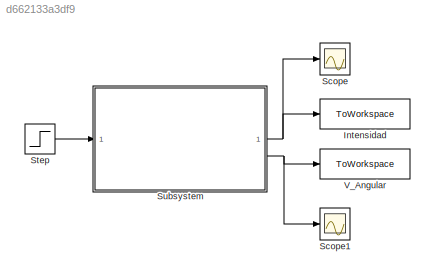
MODEL slx_d662133a3df9
KIND model
CONFIG AbsTol = auto
CONFIG EnableMultiTasking = off
CONFIG FixedStep = auto
CONFIG MaxStep = auto
CONFIG MinStep = auto
CONFIG RelTol = 1e-3
CONFIG SampleTimeConstraint = Unconstrained
CONFIG SolverName = VariableStepAuto
CONFIG StartTime = 0.0
CONFIG StopTime = 1
BLOCK [ToWorkspace] Intensidad
  MaxDataPoints = inf
  SampleTime = -1
  VariableName = intensidad
BLOCK [Scope] Scope
  Floating = off
  NumInputPorts = 1
  ScopeSpecificationString = Simulink.scopes.TimeScopeBlockCfg('CurrentConfiguration', extmgr.ConfigurationSet(extmgr.Configuration('Core','General UI',true),extmgr.Configuration('Core','Source UI',true),extmgr.Configuration('Sources','WiredSimulink',true),extmgr.Configuration('Visuals','Time Domain',true,'SerializedDisplays',{struct('MinYLimReal','-0.95522','MaxYLimReal','8.59701','YLabelReal','','MinYLimMag','0.00000','MaxY...<+1462ch>
BLOCK [Scope] Scope1
  Floating = off
  NumInputPorts = 1
  ScopeSpecificationString = Simulink.scopes.TimeScopeBlockCfg('CurrentConfiguration', extmgr.ConfigurationSet(extmgr.Configuration('Core','General UI',true),extmgr.Configuration('Core','Source UI',true),extmgr.Configuration('Sources','WiredSimulink',true,'DataLoggingVariableName','ScopeData1'),extmgr.Configuration('Visuals','Time Domain',true,'SerializedDisplays',{struct('MinYLimReal','-16.17564','MaxYLimReal','145.58079','Y...<+1511ch>
BLOCK [Step] Step
  After = 10.5
  SampleTime = 0
  Time = 0.5
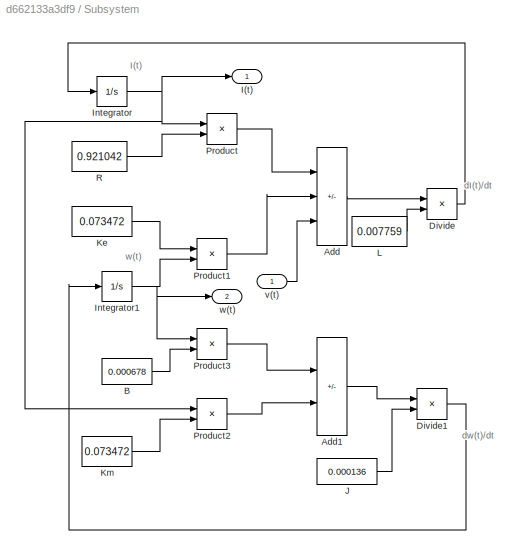
BLOCK [SubSystem] Subsystem
BLOCK [Sum] Subsystem/Add
  IconShape = rectangular
  Inputs = --+
BLOCK [Sum] Subsystem/Add1
  IconShape = rectangular
  Inputs = -+
BLOCK [Constant] Subsystem/B
  Value = 0.000678
BLOCK [Product] Subsystem/Divide
  Inputs = */
BLOCK [Product] Subsystem/Divide1
  Inputs = */
BLOCK [Outport] Subsystem/I(t)
BLOCK [Integrator] Subsystem/Integrator
BLOCK [Integrator] Subsystem/Integrator1
BLOCK [Constant] Subsystem/J
  Value = 0.000136
BLOCK [Constant] Subsystem/Ke
  Value = 0.073472
BLOCK [Constant] Subsystem/Km
  Value = 0.073472
BLOCK [Constant] Subsystem/L
  Value = 0.007759
BLOCK [Product] Subsystem/Product
BLOCK [Product] Subsystem/Product1
BLOCK [Product] Subsystem/Product2
BLOCK [Product] Subsystem/Product3
BLOCK [Constant] Subsystem/R
  Value = 0.921042
BLOCK [Inport] Subsystem/v(t)
BLOCK [Outport] Subsystem/w(t)
  Port = 2
BLOCK [ToWorkspace] V_Angular
  FixptAsFi = on
  MaxDataPoints = inf
  SampleTime = -1
  VariableName = v_angular
ANNOTATION Subsystem: I(t)
ANNOTATION Subsystem: dI(t)/dt
ANNOTATION Subsystem: dw(t)/dt
ANNOTATION Subsystem: w(t)
LINE Step:1 -> Subsystem:1
LINE Subsystem/Add1:1 -> Subsystem/Divide1:1
LINE Subsystem/Add:1 -> Subsystem/Divide:1
LINE Subsystem/B:1 -> Subsystem/Product3:2
LINE Subsystem/Divide1:1 -> Subsystem/Integrator1:1
LINE Subsystem/Divide:1 -> Subsystem/Integrator:1
NET Subsystem/Integrator1:1 -> Subsystem/Product1:2, Subsystem/Product3:1, Subsystem/w(t):1
NET Subsystem/Integrator:1 -> Subsystem/I(t):1, Subsystem/Product2:1, Subsystem/Product:1
LINE Subsystem/J:1 -> Subsystem/Divide1:2
LINE Subsystem/Ke:1 -> Subsystem/Product1:1
LINE Subsystem/Km:1 -> Subsystem/Product2:2
LINE Subsystem/L:1 -> Subsystem/Divide:2
LINE Subsystem/Product1:1 -> Subsystem/Add:2
LINE Subsystem/Product2:1 -> Subsystem/Add1:2
LINE Subsystem/Product3:1 -> Subsystem/Add1:1
LINE Subsystem/Product:1 -> Subsystem/Add:1
LINE Subsystem/R:1 -> Subsystem/Product:2
LINE Subsystem/v(t):1 -> Subsystem/Add:3
NET Subsystem:1 -> Intensidad:1, Scope:1
NET Subsystem:2 -> Scope1:1, V_Angular:1
note: NET lines group one-source signal fan-out (src -> all destinations, sorted); 1:1 wires keep LINE
